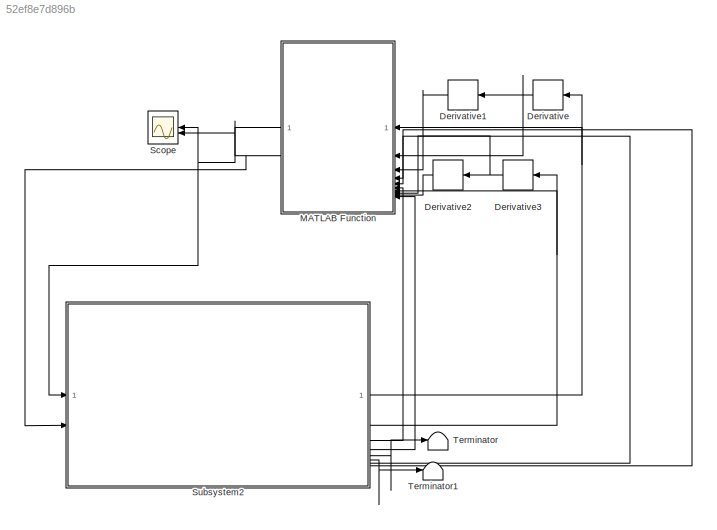
MODEL slx_52ef8e7d896b
KIND model
CONFIG AbsTol = 1e-3
CONFIG EnableMultiTasking = on
CONFIG FixedStep = auto
CONFIG MaxStep = auto
CONFIG MinStep = auto
CONFIG RelTol = 1e-3
CONFIG SampleTimeConstraint = Unconstrained
CONFIG SolverName = VariableStepAuto
CONFIG StartTime = 0.0
CONFIG StopTime = 10.0
BLOCK [Derivative] Derivative
BLOCK [Derivative] Derivative1
BLOCK [Derivative] Derivative2
BLOCK [Derivative] Derivative3
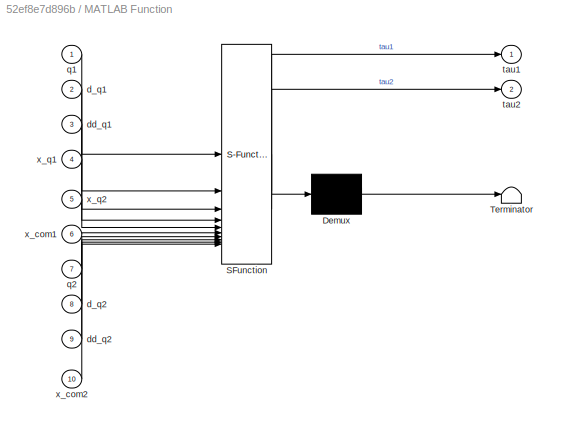
BLOCK [SubSystem] MATLAB Function
  ErrorFcn = Stateflow.Translate.translate
  LibrarySourceBlock = simulink/User-Defined\nFunctions/MATLAB Function
  PermitHierarchicalResolution = ExplicitOnly
  SFBlockType = MATLAB Function
  TreatAsAtomicUnit = on
BLOCK [Demux] MATLAB Function/ Demux 
  Outputs = 1
BLOCK [S-Function] MATLAB Function/ SFunction 
  EnableBusSupport = on
  FunctionName = sf_sfun
  PortCounts = [10 3]
  SFcnIsStateOwnerBlock = off
  SFunctionDeploymentMode = off
  Tag = Stateflow S-Function 2
BLOCK [Terminator] MATLAB Function/ Terminator 
BLOCK [Inport] MATLAB Function/d_q1
  Port = 2
BLOCK [Inport] MATLAB Function/d_q2
  Port = 8
BLOCK [Inport] MATLAB Function/dd_q1
  Port = 3
BLOCK [Inport] MATLAB Function/dd_q2
  Port = 9
BLOCK [Inport] MATLAB Function/q1
BLOCK [Inport] MATLAB Function/q2
  Port = 7
BLOCK [Outport] MATLAB Function/tau1
BLOCK [Outport] MATLAB Function/tau2
  Port = 2
BLOCK [Inport] MATLAB Function/x_com1
  Port = 6
BLOCK [Inport] MATLAB Function/x_com2
  Port = 10
BLOCK [Inport] MATLAB Function/x_q1
  Port = 4
BLOCK [Inport] MATLAB Function/x_q2
  Port = 5
BLOCK [Scope] Scope
  Floating = off
  NumInputPorts = 2
  ScopeSpecificationString = Simulink.scopes.TimeScopeBlockCfg('CurrentConfiguration', extmgr.ConfigurationSet(extmgr.Configuration('Core','General UI',true),extmgr.Configuration('Core','Source UI',true),extmgr.Configuration('Sources','WiredSimulink',true),extmgr.Configuration('Visuals','Time Domain',true,'SerializedDisplays',{struct('MinYLimReal','-367.87368','MaxYLimReal','367.87485','YLabelReal','','MinYLimMag',' 0.00000',...<+1420ch>
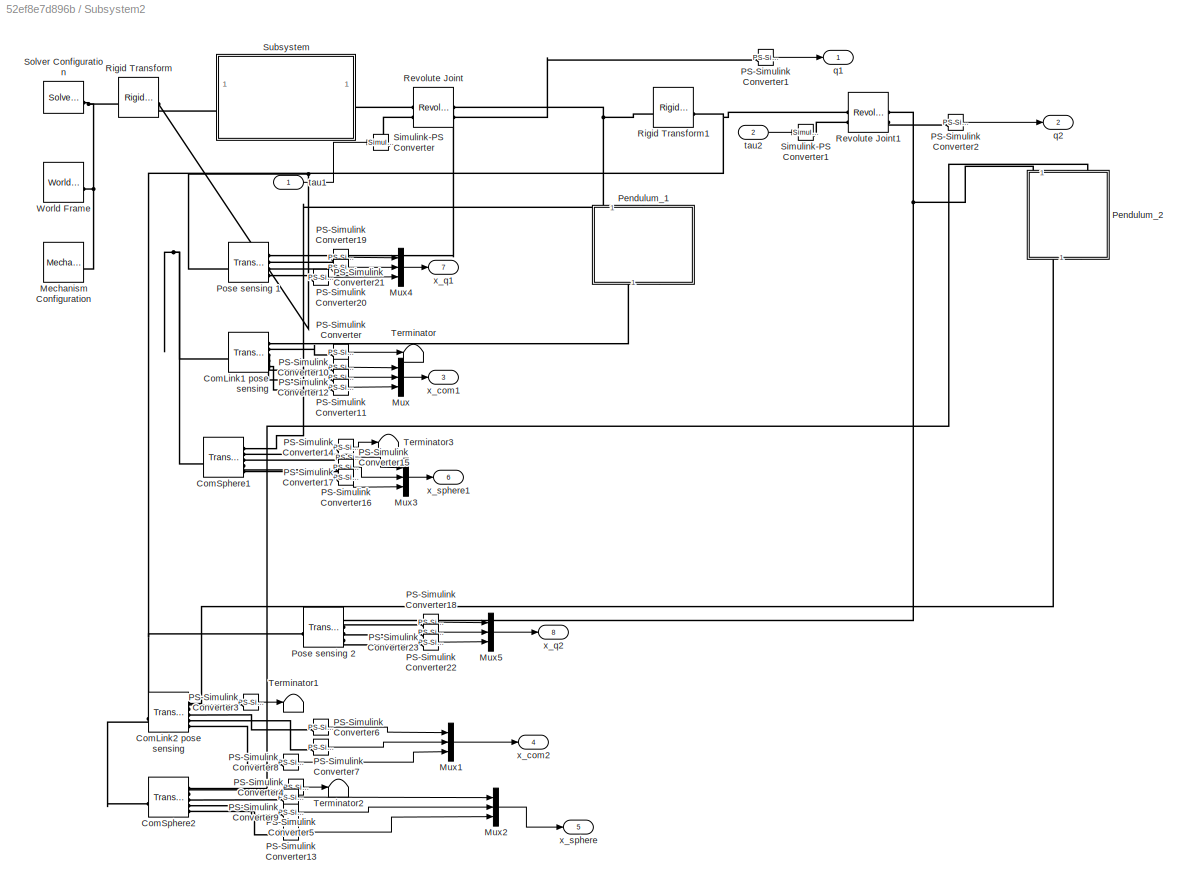
BLOCK [SubSystem] Subsystem2
BLOCK [Reference] Subsystem2/ComLink1 pose sensing  REF=sm_lib/Frames and
Transforms/Transform
Sensor
  SourceBlock = sm_lib/Frames and\nTransforms/Transform\nSensor
  SourceType = Transform\nSensor
BLOCK [Reference] Subsystem2/ComLink2 pose sensing   REF=sm_lib/Frames and
Transforms/Transform
Sensor
  SourceBlock = sm_lib/Frames and\nTransforms/Transform\nSensor
  SourceType = Transform\nSensor
BLOCK [Reference] Subsystem2/ComSphere1  REF=sm_lib/Frames and
Transforms/Transform
Sensor
  SourceBlock = sm_lib/Frames and\nTransforms/Transform\nSensor
  SourceType = Transform\nSensor
BLOCK [Reference] Subsystem2/ComSphere2  REF=sm_lib/Frames and
Transforms/Transform
Sensor
  SourceBlock = sm_lib/Frames and\nTransforms/Transform\nSensor
  SourceType = Transform\nSensor
BLOCK [Reference] Subsystem2/Mechanism Configuration  REF=sm_lib/Utilities/Mechanism
Configuration
  SourceBlock = sm_lib/Utilities/Mechanism\nConfiguration
  SourceType = Mechanism\nConfiguration
BLOCK [Mux] Subsystem2/Mux
  DisplayOption = bar
  Inputs = 3
BLOCK [Mux] Subsystem2/Mux1
  DisplayOption = bar
  Inputs = 3
BLOCK [Mux] Subsystem2/Mux2
  DisplayOption = bar
  Inputs = 3
BLOCK [Mux] Subsystem2/Mux3
  DisplayOption = bar
  Inputs = 3
BLOCK [Mux] Subsystem2/Mux4
  DisplayOption = bar
  Inputs = 3
BLOCK [Mux] Subsystem2/Mux5
  DisplayOption = bar
  Inputs = 3
BLOCK [Reference] Subsystem2/PS-Simulink Converter  REF=nesl_utility/PS-Simulink
Converter
  SourceBlock = nesl_utility/PS-Simulink\nConverter
  SourceType = PS-Simulink\nConverter
BLOCK [Reference] Subsystem2/PS-Simulink Converter1  REF=nesl_utility/PS-Simulink
Converter
  SourceBlock = nesl_utility/PS-Simulink\nConverter
  SourceType = PS-Simulink\nConverter
BLOCK [Reference] Subsystem2/PS-Simulink Converter10  REF=nesl_utility/PS-Simulink
Converter
  SourceBlock = nesl_utility/PS-Simulink\nConverter
  SourceType = PS-Simulink\nConverter
BLOCK [Reference] Subsystem2/PS-Simulink Converter11  REF=nesl_utility/PS-Simulink
Converter
  SourceBlock = nesl_utility/PS-Simulink\nConverter
  SourceType = PS-Simulink\nConverter
BLOCK [Reference] Subsystem2/PS-Simulink Converter12  REF=nesl_utility/PS-Simulink
Converter
  SourceBlock = nesl_utility/PS-Simulink\nConverter
  SourceType = PS-Simulink\nConverter
BLOCK [Reference] Subsystem2/PS-Simulink Converter13  REF=nesl_utility/PS-Simulink
Converter
  SourceBlock = nesl_utility/PS-Simulink\nConverter
  SourceType = PS-Simulink\nConverter
BLOCK [Reference] Subsystem2/PS-Simulink Converter14  REF=nesl_utility/PS-Simulink
Converter
  SourceBlock = nesl_utility/PS-Simulink\nConverter
  SourceType = PS-Simulink\nConverter
BLOCK [Reference] Subsystem2/PS-Simulink Converter15  REF=nesl_utility/PS-Simulink
Converter
  SourceBlock = nesl_utility/PS-Simulink\nConverter
  SourceType = PS-Simulink\nConverter
BLOCK [Reference] Subsystem2/PS-Simulink Converter16  REF=nesl_utility/PS-Simulink
Converter
  SourceBlock = nesl_utility/PS-Simulink\nConverter
  SourceType = PS-Simulink\nConverter
BLOCK [Reference] Subsystem2/PS-Simulink Converter17  REF=nesl_utility/PS-Simulink
Converter
  SourceBlock = nesl_utility/PS-Simulink\nConverter
  SourceType = PS-Simulink\nConverter
BLOCK [Reference] Subsystem2/PS-Simulink Converter18  REF=nesl_utility/PS-Simulink
Converter
  SourceBlock = nesl_utility/PS-Simulink\nConverter
  SourceType = PS-Simulink\nConverter
BLOCK [Reference] Subsystem2/PS-Simulink Converter19  REF=nesl_utility/PS-Simulink
Converter
  SourceBlock = nesl_utility/PS-Simulink\nConverter
  SourceType = PS-Simulink\nConverter
BLOCK [Reference] Subsystem2/PS-Simulink Converter2  REF=nesl_utility/PS-Simulink
Converter
  SourceBlock = nesl_utility/PS-Simulink\nConverter
  SourceType = PS-Simulink\nConverter
BLOCK [Reference] Subsystem2/PS-Simulink Converter20  REF=nesl_utility/PS-Simulink
Converter
  SourceBlock = nesl_utility/PS-Simulink\nConverter
  SourceType = PS-Simulink\nConverter
BLOCK [Reference] Subsystem2/PS-Simulink Converter21  REF=nesl_utility/PS-Simulink
Converter
  SourceBlock = nesl_utility/PS-Simulink\nConverter
  SourceType = PS-Simulink\nConverter
BLOCK [Reference] Subsystem2/PS-Simulink Converter22  REF=nesl_utility/PS-Simulink
Converter
  SourceBlock = nesl_utility/PS-Simulink\nConverter
  SourceType = PS-Simulink\nConverter
BLOCK [Reference] Subsystem2/PS-Simulink Converter23  REF=nesl_utility/PS-Simulink
Converter
  SourceBlock = nesl_utility/PS-Simulink\nConverter
  SourceType = PS-Simulink\nConverter
BLOCK [Reference] Subsystem2/PS-Simulink Converter3  REF=nesl_utility/PS-Simulink
Converter
  SourceBlock = nesl_utility/PS-Simulink\nConverter
  SourceType = PS-Simulink\nConverter
BLOCK [Reference] Subsystem2/PS-Simulink Converter4  REF=nesl_utility/PS-Simulink
Converter
  SourceBlock = nesl_utility/PS-Simulink\nConverter
  SourceType = PS-Simulink\nConverter
BLOCK [Reference] Subsystem2/PS-Simulink Converter5  REF=nesl_utility/PS-Simulink
Converter
  SourceBlock = nesl_utility/PS-Simulink\nConverter
  SourceType = PS-Simulink\nConverter
BLOCK [Reference] Subsystem2/PS-Simulink Converter6  REF=nesl_utility/PS-Simulink
Converter
  SourceBlock = nesl_utility/PS-Simulink\nConverter
  SourceType = PS-Simulink\nConverter
BLOCK [Reference] Subsystem2/PS-Simulink Converter7  REF=nesl_utility/PS-Simulink
Converter
  SourceBlock = nesl_utility/PS-Simulink\nConverter
  SourceType = PS-Simulink\nConverter
BLOCK [Reference] Subsystem2/PS-Simulink Converter8  REF=nesl_utility/PS-Simulink
Converter
  SourceBlock = nesl_utility/PS-Simulink\nConverter
  SourceType = PS-Simulink\nConverter
BLOCK [Reference] Subsystem2/PS-Simulink Converter9  REF=nesl_utility/PS-Simulink
Converter
  SourceBlock = nesl_utility/PS-Simulink\nConverter
  SourceType = PS-Simulink\nConverter
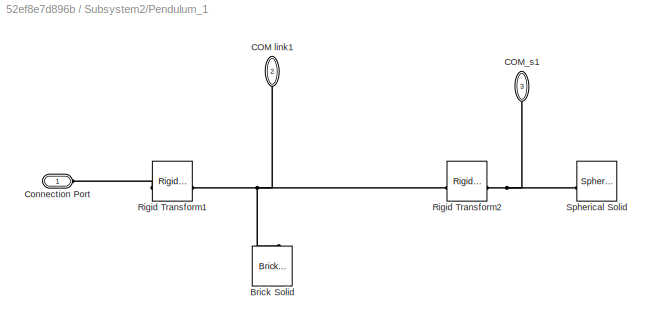
BLOCK [SubSystem] Subsystem2/Pendulum_1
  NameLocation = left
BLOCK [Reference] Subsystem2/Pendulum_1/Brick Solid  REF=sm_lib/Body Elements/Brick Solid
  NameLocation = right
  SourceBlock = sm_lib/Body Elements/Brick Solid
  SourceType = Brick Solid
BLOCK [PMIOPort] Subsystem2/Pendulum_1/COM link1
  NameLocation = left
  Port = 2
  Side = Right
BLOCK [PMIOPort] Subsystem2/Pendulum_1/COM_s1
  NameLocation = left
  Port = 3
  Side = Left
BLOCK [PMIOPort] Subsystem2/Pendulum_1/Connection Port
  Side = Left
BLOCK [Reference] Subsystem2/Pendulum_1/Rigid Transform1  REF=sm_lib/Frames and
Transforms/Rigid
Transform
  SourceBlock = sm_lib/Frames and\nTransforms/Rigid\nTransform
  SourceType = Rigid\nTransform
BLOCK [Reference] Subsystem2/Pendulum_1/Rigid Transform2  REF=sm_lib/Frames and
Transforms/Rigid
Transform
  SourceBlock = sm_lib/Frames and\nTransforms/Rigid\nTransform
  SourceType = Rigid\nTransform
BLOCK [Reference] Subsystem2/Pendulum_1/Spherical Solid  REF=sm_lib/Body Elements/Spherical Solid
  SourceBlock = sm_lib/Body Elements/Spherical Solid
  SourceType = Spherical Solid
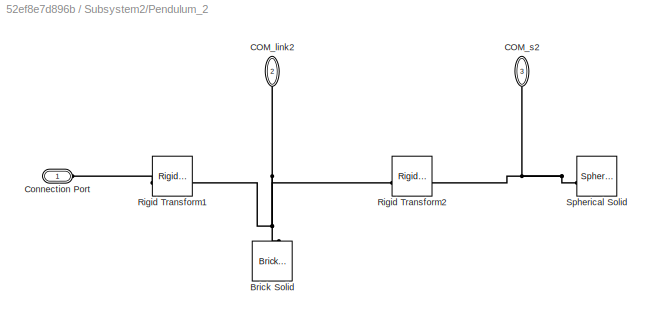
BLOCK [SubSystem] Subsystem2/Pendulum_2
  NameLocation = left
BLOCK [Reference] Subsystem2/Pendulum_2/Brick Solid  REF=sm_lib/Body Elements/Brick Solid
  NameLocation = right
  SourceBlock = sm_lib/Body Elements/Brick Solid
  SourceType = Brick Solid
BLOCK [PMIOPort] Subsystem2/Pendulum_2/COM_link2
  NameLocation = left
  Port = 2
  Side = Right
BLOCK [PMIOPort] Subsystem2/Pendulum_2/COM_s2
  NameLocation = left
  Port = 3
  Side = Left
BLOCK [PMIOPort] Subsystem2/Pendulum_2/Connection Port
  Side = Left
BLOCK [Reference] Subsystem2/Pendulum_2/Rigid Transform1  REF=sm_lib/Frames and
Transforms/Rigid
Transform
  SourceBlock = sm_lib/Frames and\nTransforms/Rigid\nTransform
  SourceType = Rigid\nTransform
BLOCK [Reference] Subsystem2/Pendulum_2/Rigid Transform2  REF=sm_lib/Frames and
Transforms/Rigid
Transform
  SourceBlock = sm_lib/Frames and\nTransforms/Rigid\nTransform
  SourceType = Rigid\nTransform
BLOCK [Reference] Subsystem2/Pendulum_2/Spherical Solid  REF=sm_lib/Body Elements/Spherical Solid
  SourceBlock = sm_lib/Body Elements/Spherical Solid
  SourceType = Spherical Solid
BLOCK [Reference] Subsystem2/Pose sensing 1  REF=sm_lib/Frames and
Transforms/Transform
Sensor
  SourceBlock = sm_lib/Frames and\nTransforms/Transform\nSensor
  SourceType = Transform\nSensor
BLOCK [Reference] Subsystem2/Pose sensing 2  REF=sm_lib/Frames and
Transforms/Transform
Sensor
  SourceBlock = sm_lib/Frames and\nTransforms/Transform\nSensor
  SourceType = Transform\nSensor
BLOCK [Reference] Subsystem2/Revolute Joint  REF=sm_lib/Joints/Revolute Joint
  SourceBlock = sm_lib/Joints/Revolute Joint
  SourceType = Revolute Joint
BLOCK [Reference] Subsystem2/Revolute Joint1  REF=sm_lib/Joints/Revolute Joint
  SourceBlock = sm_lib/Joints/Revolute Joint
  SourceType = Revolute Joint
BLOCK [Reference] Subsystem2/Rigid Transform  REF=sm_lib/Frames and
Transforms/Rigid
Transform
  SourceBlock = sm_lib/Frames and\nTransforms/Rigid\nTransform
  SourceType = Rigid\nTransform
BLOCK [Reference] Subsystem2/Rigid Transform1  REF=sm_lib/Frames and
Transforms/Rigid
Transform
  SourceBlock = sm_lib/Frames and\nTransforms/Rigid\nTransform
  SourceType = Rigid\nTransform
BLOCK [Reference] Subsystem2/Simulink-PS Converter  REF=nesl_utility/Simulink-PS
Converter
  SourceBlock = nesl_utility/Simulink-PS\nConverter
  SourceType = Simulink-PS\nConverter
BLOCK [Reference] Subsystem2/Simulink-PS Converter1  REF=nesl_utility/Simulink-PS
Converter
  SourceBlock = nesl_utility/Simulink-PS\nConverter
  SourceType = Simulink-PS\nConverter
BLOCK [Reference] Subsystem2/Solver Configuration  REF=nesl_utility/Solver
Configuration
  SourceBlock = nesl_utility/Solver\nConfiguration
  SourceType = Solver\nConfiguration
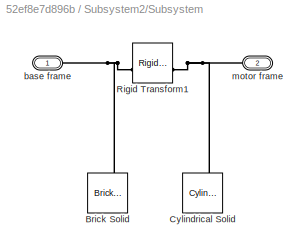
BLOCK [SubSystem] Subsystem2/Subsystem
BLOCK [Reference] Subsystem2/Subsystem/Brick Solid  REF=sm_lib/Body Elements/Brick Solid
  SourceBlock = sm_lib/Body Elements/Brick Solid
  SourceType = Brick Solid
BLOCK [Reference] Subsystem2/Subsystem/Cylindrical Solid  REF=sm_lib/Body Elements/Cylindrical Solid
  NameLocation = right
  SourceBlock = sm_lib/Body Elements/Cylindrical Solid
  SourceType = Cylindrical Solid
BLOCK [Reference] Subsystem2/Subsystem/Rigid Transform1  REF=sm_lib/Frames and
Transforms/Rigid
Transform
  SourceBlock = sm_lib/Frames and\nTransforms/Rigid\nTransform
  SourceType = Rigid\nTransform
BLOCK [PMIOPort] Subsystem2/Subsystem/base frame
  Side = Left
BLOCK [PMIOPort] Subsystem2/Subsystem/motor frame
  Port = 2
  Side = Right
BLOCK [Terminator] Subsystem2/Terminator
BLOCK [Terminator] Subsystem2/Terminator1
BLOCK [Terminator] Subsystem2/Terminator2
BLOCK [Terminator] Subsystem2/Terminator3
BLOCK [Reference] Subsystem2/World Frame  REF=sm_lib/Frames and
Transforms/World Frame
  SourceBlock = sm_lib/Frames and\nTransforms/World Frame
  SourceType = World Frame
BLOCK [Outport] Subsystem2/q1
BLOCK [Outport] Subsystem2/q2
  Port = 2
BLOCK [Inport] Subsystem2/tau1
BLOCK [Inport] Subsystem2/tau2
  Port = 2
BLOCK [Outport] Subsystem2/x_com1
  Port = 3
BLOCK [Outport] Subsystem2/x_com2
  Port = 4
BLOCK [Outport] Subsystem2/x_q1
  Port = 7
BLOCK [Outport] Subsystem2/x_q2
  Port = 8
BLOCK [Outport] Subsystem2/x_sphere
  Port = 5
BLOCK [Outport] Subsystem2/x_sphere1
  Port = 6
BLOCK [Terminator] Terminator
BLOCK [Terminator] Terminator1
LINE Derivative1:1 -> MATLAB Function:3
LINE Derivative2:1 -> MATLAB Function:9
NET Derivative3:1 -> Derivative2:1, MATLAB Function:8
NET Derivative:1 -> Derivative1:1, MATLAB Function:2
NET MATLAB Function:1 -> Scope:1, Subsystem2:1
NET MATLAB Function:2 -> Scope:2, Subsystem2:2
LINE Subsystem2/Mux1:1 -> Subsystem2/x_com2:1
LINE Subsystem2/Mux2:1 -> Subsystem2/x_sphere:1
LINE Subsystem2/Mux3:1 -> Subsystem2/x_sphere1:1
LINE Subsystem2/Mux4:1 -> Subsystem2/x_q1:1
LINE Subsystem2/Mux5:1 -> Subsystem2/x_q2:1
LINE Subsystem2/Mux:1 -> Subsystem2/x_com1:1
LINE Subsystem2/PS-Simulink Converter10:1 -> Subsystem2/Mux:1
LINE Subsystem2/PS-Simulink Converter11:1 -> Subsystem2/Mux:2
LINE Subsystem2/PS-Simulink Converter12:1 -> Subsystem2/Mux:3
LINE Subsystem2/PS-Simulink Converter13:1 -> Subsystem2/Mux2:3
LINE Subsystem2/PS-Simulink Converter14:1 -> Subsystem2/Terminator3:1
LINE Subsystem2/PS-Simulink Converter15:1 -> Subsystem2/Mux3:1
LINE Subsystem2/PS-Simulink Converter16:1 -> Subsystem2/Mux3:2
LINE Subsystem2/PS-Simulink Converter17:1 -> Subsystem2/Mux3:3
LINE Subsystem2/PS-Simulink Converter18:1 -> Subsystem2/Mux5:1
LINE Subsystem2/PS-Simulink Converter19:1 -> Subsystem2/Mux4:1
LINE Subsystem2/PS-Simulink Converter1:1 -> Subsystem2/q1:1
LINE Subsystem2/PS-Simulink Converter20:1 -> Subsystem2/Mux4:2
LINE Subsystem2/PS-Simulink Converter21:1 -> Subsystem2/Mux4:3
LINE Subsystem2/PS-Simulink Converter22:1 -> Subsystem2/Mux5:2
LINE Subsystem2/PS-Simulink Converter23:1 -> Subsystem2/Mux5:3
LINE Subsystem2/PS-Simulink Converter2:1 -> Subsystem2/q2:1
LINE Subsystem2/PS-Simulink Converter3:1 -> Subsystem2/Terminator1:1
LINE Subsystem2/PS-Simulink Converter4:1 -> Subsystem2/Terminator2:1
LINE Subsystem2/PS-Simulink Converter5:1 -> Subsystem2/Mux2:1
LINE Subsystem2/PS-Simulink Converter6:1 -> Subsystem2/Mux1:1
LINE Subsystem2/PS-Simulink Converter7:1 -> Subsystem2/Mux1:2
LINE Subsystem2/PS-Simulink Converter8:1 -> Subsystem2/Mux1:3
LINE Subsystem2/PS-Simulink Converter9:1 -> Subsystem2/Mux2:2
LINE Subsystem2/PS-Simulink Converter:1 -> Subsystem2/Terminator:1
LINE Subsystem2/tau1:1 -> Subsystem2/Simulink-PS Converter:1
LINE Subsystem2/tau2:1 -> Subsystem2/Simulink-PS Converter1:1
NET Subsystem2:1 -> Derivative:1, MATLAB Function:1
NET Subsystem2:2 -> Derivative3:1, MATLAB Function:7
LINE Subsystem2:3 -> MATLAB Function:6
LINE Subsystem2:4 -> MATLAB Function:10
LINE Subsystem2:5 -> Terminator:1
LINE Subsystem2:6 -> Terminator1:1
LINE Subsystem2:7 -> MATLAB Function:4
LINE Subsystem2:8 -> MATLAB Function:5
PNET net1: Subsystem2/ComLink1 pose sensing:LConn1 -- Subsystem2/ComSphere1:LConn1 -- Subsystem2/Pose sensing 1:LConn1 -- Subsystem2/Rigid Transform:RConn1 -- Subsystem2/Subsystem:LConn1
PLINE Subsystem2/ComLink1 pose sensing:RConn1 -- Subsystem2/Pendulum_1:RConn1
PLINE Subsystem2/ComLink1 pose sensing:RConn2 -- Subsystem2/PS-Simulink Converter:LConn1
PLINE Subsystem2/ComLink1 pose sensing:RConn3 -- Subsystem2/PS-Simulink Converter10:LConn1
PLINE Subsystem2/ComLink1 pose sensing:RConn4 -- Subsystem2/PS-Simulink Converter11:LConn1
PLINE Subsystem2/ComLink1 pose sensing:RConn5 -- Subsystem2/PS-Simulink Converter12:LConn1
PNET net2: Subsystem2/ComLink2 pose sensing :LConn1 -- Subsystem2/ComSphere2:LConn1 -- Subsystem2/Pose sensing 2:LConn1 -- Subsystem2/Revolute Joint1:LConn1 -- Subsystem2/Rigid Transform1:RConn1
PLINE Subsystem2/ComLink2 pose sensing :RConn1 -- Subsystem2/Pendulum_2:RConn1
PLINE Subsystem2/ComLink2 pose sensing :RConn2 -- Subsystem2/PS-Simulink Converter3:LConn1
PLINE Subsystem2/ComLink2 pose sensing :RConn3 -- Subsystem2/PS-Simulink Converter6:LConn1
PLINE Subsystem2/ComLink2 pose sensing :RConn4 -- Subsystem2/PS-Simulink Converter7:LConn1
PLINE Subsystem2/ComLink2 pose sensing :RConn5 -- Subsystem2/PS-Simulink Converter8:LConn1
PLINE Subsystem2/ComSphere1:RConn1 -- Subsystem2/Pendulum_1:LConn2
PLINE Subsystem2/ComSphere1:RConn2 -- Subsystem2/PS-Simulink Converter14:LConn1
PLINE Subsystem2/ComSphere1:RConn3 -- Subsystem2/PS-Simulink Converter15:LConn1
PLINE Subsystem2/ComSphere1:RConn4 -- Subsystem2/PS-Simulink Converter16:LConn1
PLINE Subsystem2/ComSphere1:RConn5 -- Subsystem2/PS-Simulink Converter17:LConn1
PLINE Subsystem2/ComSphere2:RConn1 -- Subsystem2/Pendulum_2:LConn2
PLINE Subsystem2/ComSphere2:RConn2 -- Subsystem2/PS-Simulink Converter4:LConn1
PLINE Subsystem2/ComSphere2:RConn3 -- Subsystem2/PS-Simulink Converter5:LConn1
PLINE Subsystem2/ComSphere2:RConn4 -- Subsystem2/PS-Simulink Converter9:LConn1
PLINE Subsystem2/ComSphere2:RConn5 -- Subsystem2/PS-Simulink Converter13:LConn1
PNET net3: Subsystem2/Mechanism Configuration:RConn1 -- Subsystem2/Rigid Transform:LConn1 -- Subsystem2/Solver Configuration:RConn1 -- Subsystem2/World Frame:RConn1
PLINE Subsystem2/PS-Simulink Converter18:LConn1 -- Subsystem2/Pose sensing 2:RConn2
PLINE Subsystem2/PS-Simulink Converter19:LConn1 -- Subsystem2/Pose sensing 1:RConn2
PLINE Subsystem2/PS-Simulink Converter1:LConn1 -- Subsystem2/Revolute Joint:RConn2
PLINE Subsystem2/PS-Simulink Converter20:LConn1 -- Subsystem2/Pose sensing 1:RConn3
PLINE Subsystem2/PS-Simulink Converter21:LConn1 -- Subsystem2/Pose sensing 1:RConn4
PLINE Subsystem2/PS-Simulink Converter22:LConn1 -- Subsystem2/Pose sensing 2:RConn3
PLINE Subsystem2/PS-Simulink Converter23:LConn1 -- Subsystem2/Pose sensing 2:RConn4
PLINE Subsystem2/PS-Simulink Converter2:LConn1 -- Subsystem2/Revolute Joint1:RConn2
PNET net4: Subsystem2/Pendulum_1/Brick Solid:RConn1 -- Subsystem2/Pendulum_1/COM link1:RConn1 -- Subsystem2/Pendulum_1/Rigid Transform1:LConn1 -- Subsystem2/Pendulum_1/Rigid Transform2:LConn1
PNET net5: Subsystem2/Pendulum_1/COM_s1:RConn1 -- Subsystem2/Pendulum_1/Rigid Transform2:RConn1 -- Subsystem2/Pendulum_1/Spherical Solid:RConn1
PLINE Subsystem2/Pendulum_1/Connection Port:RConn1 -- Subsystem2/Pendulum_1/Rigid Transform1:RConn1
PNET net6: Subsystem2/Pendulum_1:LConn1 -- Subsystem2/Pose sensing 1:RConn1 -- Subsystem2/Revolute Joint:RConn1 -- Subsystem2/Rigid Transform1:LConn1
PNET net7: Subsystem2/Pendulum_2/Brick Solid:RConn1 -- Subsystem2/Pendulum_2/COM_link2:RConn1 -- Subsystem2/Pendulum_2/Rigid Transform1:LConn1 -- Subsystem2/Pendulum_2/Rigid Transform2:LConn1
PNET net8: Subsystem2/Pendulum_2/COM_s2:RConn1 -- Subsystem2/Pendulum_2/Rigid Transform2:RConn1 -- Subsystem2/Pendulum_2/Spherical Solid:RConn1
PLINE Subsystem2/Pendulum_2/Connection Port:RConn1 -- Subsystem2/Pendulum_2/Rigid Transform1:RConn1
PNET net9: Subsystem2/Pendulum_2:LConn1 -- Subsystem2/Pose sensing 2:RConn1 -- Subsystem2/Revolute Joint1:RConn1
PLINE Subsystem2/Revolute Joint1:LConn2 -- Subsystem2/Simulink-PS Converter1:RConn1
PLINE Subsystem2/Revolute Joint:LConn1 -- Subsystem2/Subsystem:RConn1
PLINE Subsystem2/Revolute Joint:LConn2 -- Subsystem2/Simulink-PS Converter:RConn1
PNET net10: Subsystem2/Subsystem/Brick Solid:RConn1 -- Subsystem2/Subsystem/Rigid Transform1:LConn1 -- Subsystem2/Subsystem/base frame:RConn1
PNET net11: Subsystem2/Subsystem/Cylindrical Solid:RConn1 -- Subsystem2/Subsystem/Rigid Transform1:RConn1 -- Subsystem2/Subsystem/motor frame:RConn1
note: NET lines group one-source signal fan-out (src -> all destinations, sorted); 1:1 wires keep LINE; PNET lines group multi-terminal physical nets as a canonical sorted terminal list (undirected conserving connections); 2-terminal nets keep the pairwise PLINE form
CHART MATLAB Function states=1 transitions=1
  STATE_LABEL 'eML_blk_kernel()'
  STATE_LABEL 'SCRIPT:\nfunction [tau1, tau2]= fcn(q1, d_q1, dd_q1, x_q1, x_q2, x_com1, q2, d_q2, dd_q2, x_com2)\n\nL1 = 3; % lenght link1\nL2 = 3; % lenght link2\n\nm1 = 1; % mass of the link 1\nm2 = 1; % mass of the link 2\nm3 = 0; % mass of the shere 1\nm4 = 0; % mass of the shere 1\nd_q1=0;\ndd_q1=0;\nd_q2=0;\ndd_q2=0;\nI1=[1/12*m1*(0.3^2+0.3^2) 0 0; 0 1/12*m1*(L1^2+0.3^2) 0; 0 0 1/12*m1*(L1^2+0.3^2)];\nI2=I1;\ng =[0; -9.81...<+1298ch>'
CHART  states=0 transitions=0
